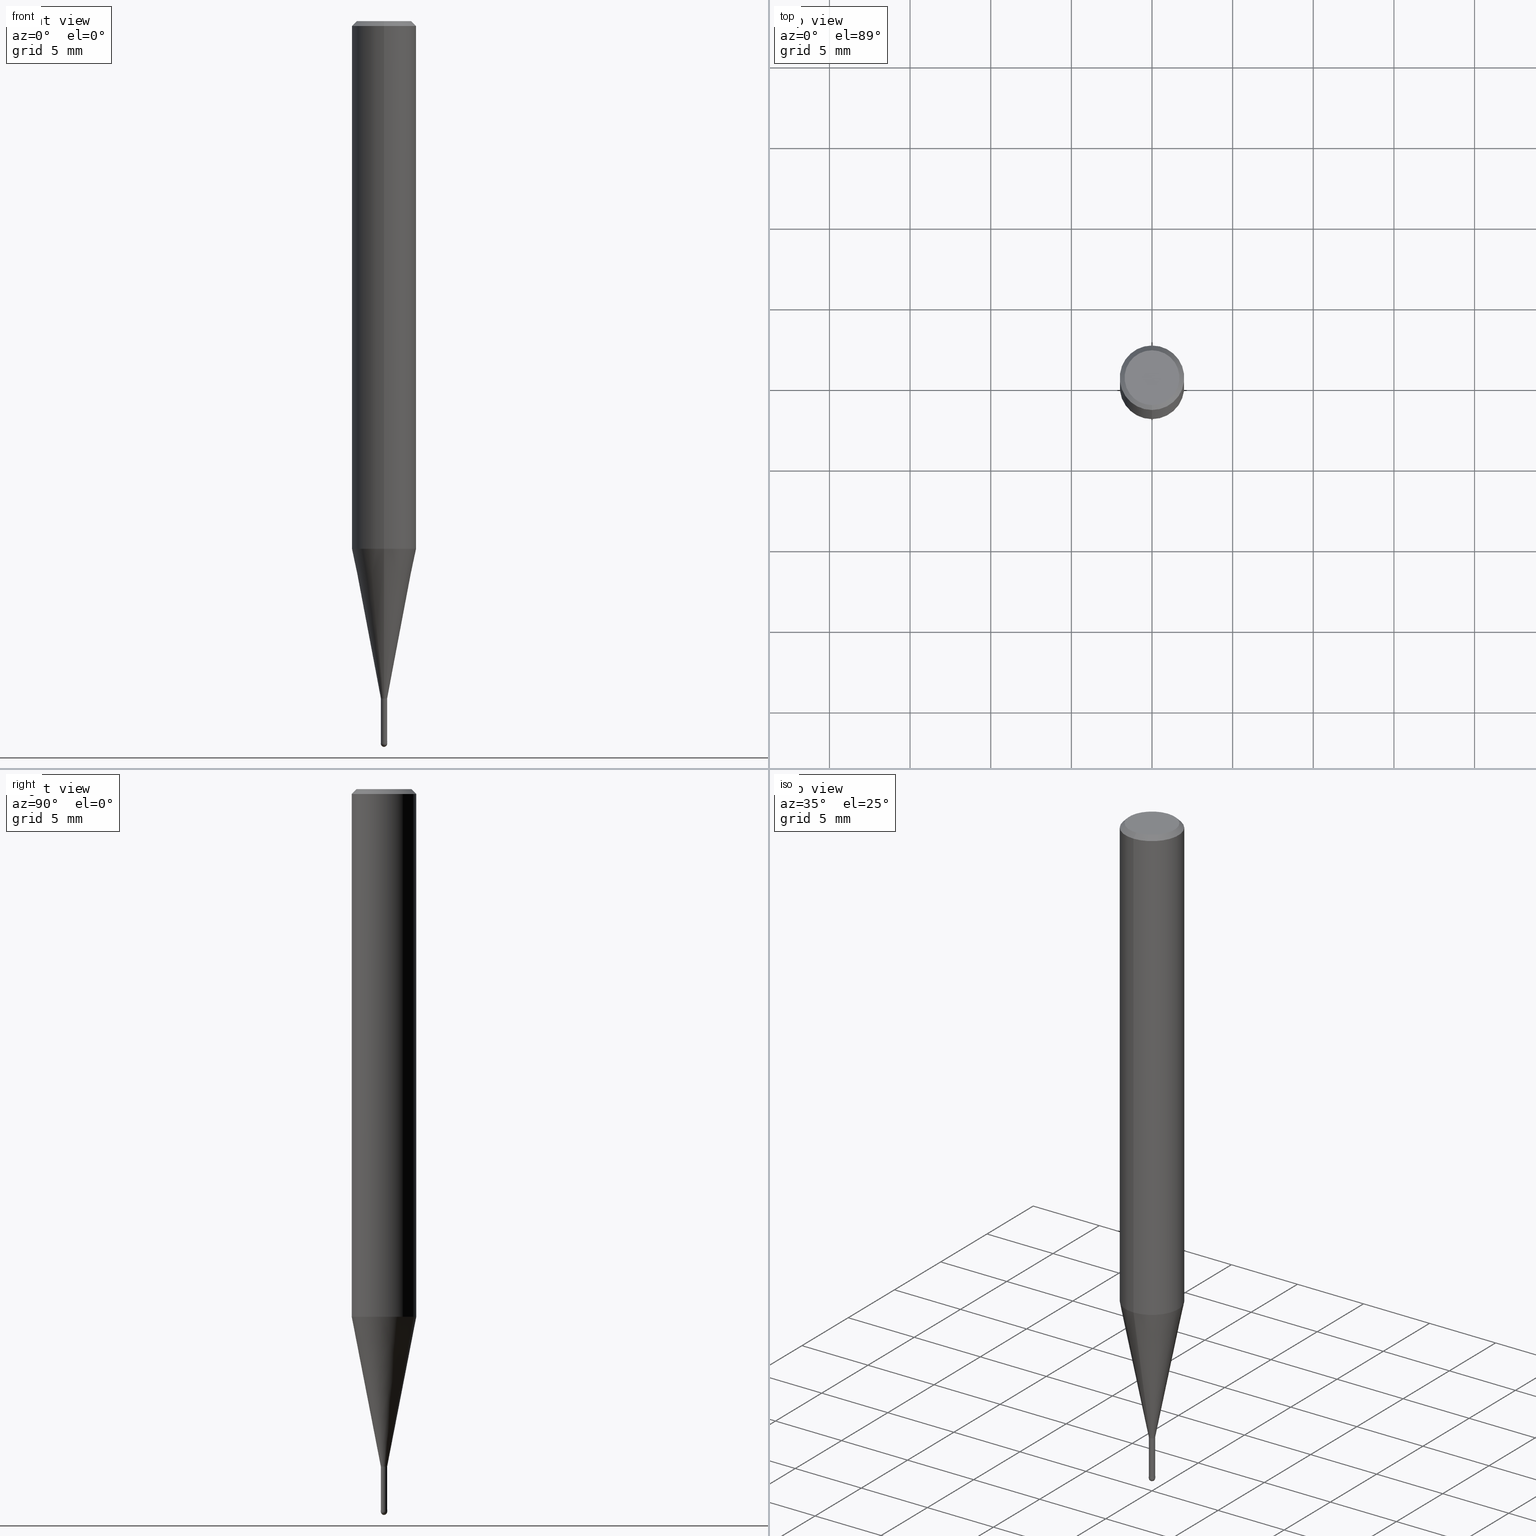
[diagram: canonical four-view strip — front | top / right | iso, engineering-drawing reading convention]
A machine part, canonical four-view strip (front | top / right | iso — engineering-drawing reading convention). The complete STEP part file that produces these views, byte-faithful:
ISO-10303-21;
HEADER;
FILE_DESCRIPTION(('no description'),'unknown implementation level');
FILE_NAME('CSELB2004-030-Huellk.stp','  ',('CIMSOURCE GmbH'),('CADClick - KiM GmbH - www.kimweb.de'),'unknown preprocess','ACIS','unknown authorization');
FILE_SCHEMA(('automotive_design'));
ENDSEC;
DATA;
#1=MECHANICAL_DESIGN_GEOMETRIC_PRESENTATION_REPRESENTATION(' ',(#14,#15,#16,#17,#18,#19,#20,#21,#22,#23,#24,#25,#26,#27,#28,#29,#30,#31,#32,#33,#34,#35,#36,#37,#38,#39,#40,#41,#42,#43,#44,#45,#46,#47,#48,#49,#50,#51,#52,#53,#54,#55,#56,#57,#58,#59,#60,#61,#62,#63,#64,#65,#66,#67,#68,#69,#70,#71,#72,#73,#74),#10);
#2=PRODUCT_DEFINITION_CONTEXT('',#75,'design');
#3=APPLICATION_PROTOCOL_DEFINITION('INTERNATIONAL STANDARD','automotive_design',1994,#75);
#4=PRODUCT_CATEGORY_RELATIONSHIP('NONE','NONE',#76,#77);
#5=SHAPE_DEFINITION_REPRESENTATION(#78,#79);
#6=PRODUCT_DEFINITION_CONTEXT('',#80,'design');
#7=APPLICATION_PROTOCOL_DEFINITION('INTERNATIONAL STANDARD','automotive_design',1994,#80);
#8=PRODUCT_CATEGORY_RELATIONSHIP('NONE','NONE',#81,#82);
#9=SHAPE_DEFINITION_REPRESENTATION(#83,#84);
#10= (GEOMETRIC_REPRESENTATION_CONTEXT(3)GLOBAL_UNCERTAINTY_ASSIGNED_CONTEXT((#87))GLOBAL_UNIT_ASSIGNED_CONTEXT((#89,#90,#91))REPRESENTATION_CONTEXT('NONE','WORKSPACE'));
#14=STYLED_ITEM('',(#93),#94);
#15=STYLED_ITEM('',(#95),#96);
#16=STYLED_ITEM('',(#97),#98);
#17=STYLED_ITEM('',(#99),#100);
#18=STYLED_ITEM('',(#101),#102);
#19=STYLED_ITEM('',(#103),#104);
#20=STYLED_ITEM('',(#105),#106);
#21=STYLED_ITEM('',(#107),#108);
#22=STYLED_ITEM('',(#109),#110);
#23=STYLED_ITEM('',(#111),#112);
#24=STYLED_ITEM('',(#113),#114);
#25=STYLED_ITEM('',(#115),#116);
#26=STYLED_ITEM('',(#117),#118);
#27=STYLED_ITEM('',(#119),#120);
#28=STYLED_ITEM('',(#121),#122);
#29=STYLED_ITEM('',(#123),#124);
#30=STYLED_ITEM('',(#125),#126);
#31=STYLED_ITEM('',(#127),#128);
#32=STYLED_ITEM('',(#129),#130);
#33=STYLED_ITEM('',(#131),#132);
#34=STYLED_ITEM('',(#133),#134);
#35=STYLED_ITEM('',(#135),#136);
#36=STYLED_ITEM('',(#137),#138);
#37=STYLED_ITEM('',(#139),#140);
#38=STYLED_ITEM('',(#141),#142);
#39=STYLED_ITEM('',(#143),#144);
#40=STYLED_ITEM('',(#145),#146);
#41=STYLED_ITEM('',(#147),#148);
#42=STYLED_ITEM('',(#149),#150);
#43=STYLED_ITEM('',(#151),#152);
#44=STYLED_ITEM('',(#153),#154);
#45=STYLED_ITEM('',(#155),#156);
#46=STYLED_ITEM('',(#157),#158);
#47=STYLED_ITEM('',(#159),#160);
#48=STYLED_ITEM('',(#161),#162);
#49=STYLED_ITEM('',(#163),#164);
#50=STYLED_ITEM('',(#165),#166);
#51=STYLED_ITEM('',(#167),#168);
#52=STYLED_ITEM('',(#169),#170);
#53=STYLED_ITEM('',(#171),#172);
#54=STYLED_ITEM('',(#173),#174);
#55=STYLED_ITEM('',(#175),#176);
#56=STYLED_ITEM('',(#177),#178);
#57=STYLED_ITEM('',(#179),#180);
#58=STYLED_ITEM('',(#181),#182);
#59=STYLED_ITEM('',(#183),#184);
#60=STYLED_ITEM('',(#185),#186);
#61=STYLED_ITEM('',(#187),#188);
#62=STYLED_ITEM('',(#189),#190);
#63=STYLED_ITEM('',(#191),#192);
#64=STYLED_ITEM('',(#193),#194);
#65=STYLED_ITEM('',(#195),#196);
#66=STYLED_ITEM('',(#197),#198);
#67=STYLED_ITEM('',(#199),#200);
#68=STYLED_ITEM('',(#201),#202);
#69=STYLED_ITEM('',(#203),#204);
#70=STYLED_ITEM('',(#205),#206);
#71=STYLED_ITEM('',(#207),#208);
#72=STYLED_ITEM('',(#209),#210);
#73=STYLED_ITEM('',(#211),#212);
#74=STYLED_ITEM('',(#213),#214);
#75=APPLICATION_CONTEXT(' ');
#76=PRODUCT_CATEGORY('part','NONE');
#77=PRODUCT_RELATED_PRODUCT_CATEGORY('detail',' ',(#215));
#78=PRODUCT_DEFINITION_SHAPE('NONE','NONE',#216);
#79=ADVANCED_BREP_SHAPE_REPRESENTATION('1',(#116,#217),#10);
#80=APPLICATION_CONTEXT(' ');
#81=PRODUCT_CATEGORY('part','NONE');
#82=PRODUCT_RELATED_PRODUCT_CATEGORY('detail',' ',(#218));
#83=PRODUCT_DEFINITION_SHAPE('NONE','NONE',#219);
#84=ADVANCED_BREP_SHAPE_REPRESENTATION('2',(#186,#220),#10);
#87=UNCERTAINTY_MEASURE_WITH_UNIT(LENGTH_MEASURE(1.0E-006),#89,'','');
#89= (CONVERSION_BASED_UNIT('MILLIMETRE',#223)LENGTH_UNIT()NAMED_UNIT(#226));
#90= (NAMED_UNIT(#228)PLANE_ANGLE_UNIT()SI_UNIT($,.RADIAN.));
#91= (NAMED_UNIT(#228)SOLID_ANGLE_UNIT()SI_UNIT($,.STERADIAN.));
#93=PRESENTATION_STYLE_ASSIGNMENT((#234));
#94=ADVANCED_FACE('',(#235),#236,.T.);
#95=PRESENTATION_STYLE_ASSIGNMENT((#237));
#96=EDGE_CURVE('',#162,#118,#238,.T.);
#97=PRESENTATION_STYLE_ASSIGNMENT((#239));
#98=EDGE_CURVE('',#114,#118,#240,.T.);
#99=PRESENTATION_STYLE_ASSIGNMENT((#241));
#100=VERTEX_POINT('',#242);
#101=PRESENTATION_STYLE_ASSIGNMENT((#243));
#102=ADVANCED_FACE('',(#244),#245,.T.);
#103=PRESENTATION_STYLE_ASSIGNMENT((#246));
#104=VERTEX_POINT('',#247);
#105=PRESENTATION_STYLE_ASSIGNMENT((#248));
#106=VERTEX_POINT('',#249);
#107=PRESENTATION_STYLE_ASSIGNMENT((#250));
#108=EDGE_CURVE('',#196,#100,#251,.T.);
#109=PRESENTATION_STYLE_ASSIGNMENT((#252));
#110=ADVANCED_FACE('',(#253),#254,.T.);
#111=PRESENTATION_STYLE_ASSIGNMENT((#255));
#112=VERTEX_POINT('',#256);
#113=PRESENTATION_STYLE_ASSIGNMENT((#257));
#114=VERTEX_POINT('',#258);
#115=PRESENTATION_STYLE_ASSIGNMENT((#259));
#116=MANIFOLD_SOLID_BREP('1',#260);
#117=PRESENTATION_STYLE_ASSIGNMENT((#261));
#118=VERTEX_POINT('',#262);
#119=PRESENTATION_STYLE_ASSIGNMENT((#263));
#120=EDGE_CURVE('',#112,#142,#264,.T.);
#121=PRESENTATION_STYLE_ASSIGNMENT((#265));
#122=EDGE_CURVE('',#180,#194,#266,.T.);
#123=PRESENTATION_STYLE_ASSIGNMENT((#267));
#124=EDGE_CURVE('',#158,#106,#268,.T.);
#125=PRESENTATION_STYLE_ASSIGNMENT((#269));
#126=VERTEX_POINT('',#270);
#127=PRESENTATION_STYLE_ASSIGNMENT((#271));
#128=EDGE_CURVE('',#142,#158,#272,.T.);
#129=PRESENTATION_STYLE_ASSIGNMENT((#273));
#130=VERTEX_POINT('',#274);
#131=PRESENTATION_STYLE_ASSIGNMENT((#275));
#132=ADVANCED_FACE('',(#276),#277,.T.);
#133=PRESENTATION_STYLE_ASSIGNMENT((#278));
#134=EDGE_CURVE('',#164,#136,#279,.T.);
#135=PRESENTATION_STYLE_ASSIGNMENT((#280));
#136=VERTEX_POINT('',#281);
#137=PRESENTATION_STYLE_ASSIGNMENT((#282));
#138=EDGE_CURVE('',#180,#100,#283,.T.);
#139=PRESENTATION_STYLE_ASSIGNMENT((#284));
#140=ADVANCED_FACE('',(#285),#286,.T.);
#141=PRESENTATION_STYLE_ASSIGNMENT((#287));
#142=VERTEX_POINT('',#288);
#143=PRESENTATION_STYLE_ASSIGNMENT((#289));
#144=ADVANCED_FACE('',(#290),#291,.T.);
#145=PRESENTATION_STYLE_ASSIGNMENT((#292));
#146=ADVANCED_FACE('',(#293),#294,.T.);
#147=PRESENTATION_STYLE_ASSIGNMENT((#295));
#148=EDGE_CURVE('',#126,#162,#296,.T.);
#149=PRESENTATION_STYLE_ASSIGNMENT((#297));
#150=EDGE_CURVE('',#114,#126,#298,.T.);
#151=PRESENTATION_STYLE_ASSIGNMENT((#299));
#152=EDGE_CURVE('',#194,#196,#300,.T.);
#153=PRESENTATION_STYLE_ASSIGNMENT((#301));
#154=ADVANCED_FACE('',(#302),#303,.T.);
#155=PRESENTATION_STYLE_ASSIGNMENT((#304));
#156=EDGE_CURVE('',#130,#180,#305,.T.);
#157=PRESENTATION_STYLE_ASSIGNMENT((#306));
#158=VERTEX_POINT('',#307);
#159=PRESENTATION_STYLE_ASSIGNMENT((#308));
#160=EDGE_CURVE('',#100,#104,#309,.T.);
#161=PRESENTATION_STYLE_ASSIGNMENT((#310));
#162=VERTEX_POINT('',#311);
#163=PRESENTATION_STYLE_ASSIGNMENT((#312));
#164=VERTEX_POINT('',#313);
#165=PRESENTATION_STYLE_ASSIGNMENT((#314));
#166=ADVANCED_FACE('',(#315),#316,.T.);
#167=PRESENTATION_STYLE_ASSIGNMENT((#317));
#168=ADVANCED_FACE('',(#318),#319,.T.);
#169=PRESENTATION_STYLE_ASSIGNMENT((#320));
#170=EDGE_CURVE('',#162,#126,#321,.T.);
#171=PRESENTATION_STYLE_ASSIGNMENT((#322));
#172=EDGE_CURVE('',#114,#118,#323,.T.);
#173=PRESENTATION_STYLE_ASSIGNMENT((#324));
#174=EDGE_CURVE('',#118,#114,#325,.T.);
#175=PRESENTATION_STYLE_ASSIGNMENT((#326));
#176=ADVANCED_FACE('',(#327),#328,.T.);
#177=PRESENTATION_STYLE_ASSIGNMENT((#329));
#178=ADVANCED_FACE('',(#330),#331,.T.);
#179=PRESENTATION_STYLE_ASSIGNMENT((#332));
#180=VERTEX_POINT('',#333);
#181=PRESENTATION_STYLE_ASSIGNMENT((#334));
#182=EDGE_CURVE('',#136,#158,#335,.T.);
#183=PRESENTATION_STYLE_ASSIGNMENT((#336));
#184=ADVANCED_FACE('',(#337,#338),#339,.T.);
#185=PRESENTATION_STYLE_ASSIGNMENT((#340));
#186=MANIFOLD_SOLID_BREP('2',#341);
#187=PRESENTATION_STYLE_ASSIGNMENT((#342));
#188=ADVANCED_FACE('',(#343),#344,.T.);
#189=PRESENTATION_STYLE_ASSIGNMENT((#345));
#190=EDGE_CURVE('',#106,#112,#346,.T.);
#191=PRESENTATION_STYLE_ASSIGNMENT((#347));
#192=ADVANCED_FACE('',(#348),#349,.T.);
#193=PRESENTATION_STYLE_ASSIGNMENT((#350));
#194=VERTEX_POINT('',#351);
#195=PRESENTATION_STYLE_ASSIGNMENT((#352));
#196=VERTEX_POINT('',#353);
#197=PRESENTATION_STYLE_ASSIGNMENT((#354));
#198=EDGE_CURVE('',#142,#164,#355,.T.);
#199=PRESENTATION_STYLE_ASSIGNMENT((#356));
#200=EDGE_CURVE('',#136,#164,#357,.T.);
#201=PRESENTATION_STYLE_ASSIGNMENT((#358));
#202=EDGE_CURVE('',#100,#180,#359,.T.);
#203=PRESENTATION_STYLE_ASSIGNMENT((#360));
#204=EDGE_CURVE('',#196,#194,#361,.T.);
#205=PRESENTATION_STYLE_ASSIGNMENT((#362));
#206=EDGE_CURVE('',#112,#106,#363,.T.);
#207=PRESENTATION_STYLE_ASSIGNMENT((#364));
#208=EDGE_CURVE('',#130,#104,#365,.T.);
#209=PRESENTATION_STYLE_ASSIGNMENT((#366));
#210=EDGE_CURVE('',#158,#142,#367,.T.);
#211=PRESENTATION_STYLE_ASSIGNMENT((#368));
#212=ADVANCED_FACE('',(#369),#370,.T.);
#213=PRESENTATION_STYLE_ASSIGNMENT((#371));
#214=EDGE_CURVE('',#104,#130,#372,.T.);
#215=PRODUCT('1','1','PART-1-DESC',(#373));
#216=PRODUCT_DEFINITION('NONE','NONE',#374,#2);
#217=AXIS2_PLACEMENT_3D('',#375,#376,#377);
#218=PRODUCT('2','2','PART-2-DESC',(#378));
#219=PRODUCT_DEFINITION('NONE','NONE',#379,#6);
#220=AXIS2_PLACEMENT_3D('',#380,#381,#382);
#223=LENGTH_MEASURE_WITH_UNIT(LENGTH_MEASURE(1.0),#383);
#226=DIMENSIONAL_EXPONENTS(1.0,0.0,0.0,0.0,0.0,0.0,0.0);
#228=DIMENSIONAL_EXPONENTS(0.0,0.0,0.0,0.0,0.0,0.0,0.0);
#234=SURFACE_STYLE_USAGE(.BOTH.,#384);
#235=FACE_OUTER_BOUND('',#385,.T.);
#236=PLANE('',#386);
#237=CURVE_STYLE('',#387,POSITIVE_LENGTH_MEASURE(1.0E-006),#388);
#238=LINE('',#389,#390);
#239=CURVE_STYLE('',#391,POSITIVE_LENGTH_MEASURE(1.0E-006),#392);
#240=CIRCLE('',#393,0.2);
#241=POINT_STYLE(' ',#394,POSITIVE_LENGTH_MEASURE(1.0E-006),#395);
#242=CARTESIAN_POINT('',(2.38737008677672E-017,-0.19495,-42.0));
#243=SURFACE_STYLE_USAGE(.BOTH.,#396);
#244=FACE_OUTER_BOUND('',#397,.T.);
#245=PLANE('',#398);
#246=POINT_STYLE(' ',#399,POSITIVE_LENGTH_MEASURE(1.0E-006),#400);
#247=CARTESIAN_POINT('',(2.44915147732706E-016,-1.99995,-32.714));
#248=POINT_STYLE(' ',#401,POSITIVE_LENGTH_MEASURE(1.0E-006),#402);
#249=CARTESIAN_POINT('',(2.08183080149804E-016,-1.7,0.0));
#250=CURVE_STYLE('',#403,POSITIVE_LENGTH_MEASURE(1.0E-006),#404);
#251=LINE('',#405,#406);
#252=SURFACE_STYLE_USAGE(.BOTH.,#407);
#253=FACE_OUTER_BOUND('',#408,.T.);
#254=CONICAL_SURFACE('',#409,1.85,0.785398163397453);
#255=POINT_STYLE(' ',#410,POSITIVE_LENGTH_MEASURE(1.0E-006),#411);
#256=CARTESIAN_POINT('',(0.0,1.7,0.0));
#257=POINT_STYLE(' ',#412,POSITIVE_LENGTH_MEASURE(1.0E-006),#413);
#258=CARTESIAN_POINT('',(2.44921270764475E-017,-0.2,-44.8));
#259=SURFACE_STYLE_USAGE(.BOTH.,#414);
#260=CLOSED_SHELL('',(#146,#192,#178,#188,#184,#94,#110,#154,#212,#144,#102));
#261=POINT_STYLE(' ',#415,POSITIVE_LENGTH_MEASURE(1.0E-006),#416);
#262=CARTESIAN_POINT('',(0.0,0.2,-44.8));
#263=CURVE_STYLE('',#417,POSITIVE_LENGTH_MEASURE(1.0E-006),#418);
#264=LINE('',#419,#420);
#265=CURVE_STYLE('',#421,POSITIVE_LENGTH_MEASURE(1.0E-006),#422);
#266=LINE('',#423,#424);
#267=CURVE_STYLE('',#425,POSITIVE_LENGTH_MEASURE(1.0E-006),#426);
#268=LINE('',#427,#428);
#269=POINT_STYLE(' ',#429,POSITIVE_LENGTH_MEASURE(1.0E-006),#430);
#270=CARTESIAN_POINT('',(2.44798810129093E-017,-0.1999,-44.68));
#271=CURVE_STYLE('',#431,POSITIVE_LENGTH_MEASURE(1.0E-006),#432);
#272=CIRCLE('',#433,2.0);
#273=POINT_STYLE(' ',#434,POSITIVE_LENGTH_MEASURE(1.0E-006),#435);
#274=CARTESIAN_POINT('',(0.0,1.99995,-32.714));
#275=SURFACE_STYLE_USAGE(.BOTH.,#436);
#276=FACE_OUTER_BOUND('',#437,.T.);
#277=CONICAL_SURFACE('',#438,0.19995,0.000833333140432319);
#278=CURVE_STYLE('',#439,POSITIVE_LENGTH_MEASURE(1.0E-006),#440);
#279=CIRCLE('',#441,2.0);
#280=POINT_STYLE(' ',#442,POSITIVE_LENGTH_MEASURE(1.0E-006),#443);
#281=CARTESIAN_POINT('',(2.44921270764475E-016,-2.0,-32.714));
#282=CURVE_STYLE('',#444,POSITIVE_LENGTH_MEASURE(1.0E-006),#445);
#283=CIRCLE('',#446,0.19495);
#284=SURFACE_STYLE_USAGE(.BOTH.,#447);
#285=FACE_OUTER_BOUND('',#448,.T.);
#286=SPHERICAL_SURFACE('',#449,0.2);
#287=POINT_STYLE(' ',#450,POSITIVE_LENGTH_MEASURE(1.0E-006),#451);
#288=CARTESIAN_POINT('',(0.0,2.0,-0.299999999999997));
#289=SURFACE_STYLE_USAGE(.BOTH.,#452);
#290=FACE_OUTER_BOUND('',#453,.T.);
#291=CYLINDRICAL_SURFACE('',#454,0.19495);
#292=SURFACE_STYLE_USAGE(.BOTH.,#455);
#293=FACE_OUTER_BOUND('',#456,.T.);
#294=CYLINDRICAL_SURFACE('',#457,0.19495);
#295=CURVE_STYLE('',#458,POSITIVE_LENGTH_MEASURE(1.0E-006),#459);
#296=CIRCLE('',#460,0.1999);
#297=CURVE_STYLE('',#461,POSITIVE_LENGTH_MEASURE(1.0E-006),#462);
#298=LINE('',#463,#464);
#299=CURVE_STYLE('',#465,POSITIVE_LENGTH_MEASURE(1.0E-006),#466);
#300=CIRCLE('',#467,0.19495);
#301=SURFACE_STYLE_USAGE(.BOTH.,#468);
#302=FACE_OUTER_BOUND('',#469,.T.);
#303=CYLINDRICAL_SURFACE('',#470,2.0);
#304=CURVE_STYLE('',#471,POSITIVE_LENGTH_MEASURE(1.0E-006),#472);
#305=LINE('',#473,#474);
#306=POINT_STYLE(' ',#475,POSITIVE_LENGTH_MEASURE(1.0E-006),#476);
#307=CARTESIAN_POINT('',(2.44921270764475E-016,-2.0,-0.299999999999997));
#308=CURVE_STYLE('',#477,POSITIVE_LENGTH_MEASURE(1.0E-006),#478);
#309=LINE('',#479,#480);
#310=POINT_STYLE(' ',#481,POSITIVE_LENGTH_MEASURE(1.0E-006),#482);
#311=CARTESIAN_POINT('',(0.0,0.1999,-44.68));
#312=POINT_STYLE(' ',#483,POSITIVE_LENGTH_MEASURE(1.0E-006),#484);
#313=CARTESIAN_POINT('',(0.0,2.0,-32.714));
#314=SURFACE_STYLE_USAGE(.BOTH.,#485);
#315=FACE_OUTER_BOUND('',#486,.T.);
#316=CONICAL_SURFACE('',#487,0.19995,0.000833333140432319);
#317=SURFACE_STYLE_USAGE(.BOTH.,#488);
#318=FACE_OUTER_BOUND('',#489,.T.);
#319=PLANE('',#490);
#320=CURVE_STYLE('',#491,POSITIVE_LENGTH_MEASURE(1.0E-006),#492);
#321=CIRCLE('',#493,0.1999);
#322=CURVE_STYLE('',#494,POSITIVE_LENGTH_MEASURE(1.0E-006),#495);
#323=CIRCLE('',#496,0.2);
#324=CURVE_STYLE('',#497,POSITIVE_LENGTH_MEASURE(1.0E-006),#498);
#325=CIRCLE('',#499,0.2);
#326=SURFACE_STYLE_USAGE(.BOTH.,#500);
#327=FACE_OUTER_BOUND('',#501,.T.);
#328=SPHERICAL_SURFACE('',#502,0.2);
#329=SURFACE_STYLE_USAGE(.BOTH.,#503);
#330=FACE_OUTER_BOUND('',#504,.T.);
#331=CYLINDRICAL_SURFACE('',#505,2.0);
#332=POINT_STYLE(' ',#506,POSITIVE_LENGTH_MEASURE(1.0E-006),#507);
#333=CARTESIAN_POINT('',(0.0,0.19495,-42.0));
#334=CURVE_STYLE('',#508,POSITIVE_LENGTH_MEASURE(1.0E-006),#509);
#335=LINE('',#510,#511);
#336=SURFACE_STYLE_USAGE(.BOTH.,#512);
#337=FACE_OUTER_BOUND('',#513,.T.);
#338=FACE_BOUND('',#514,.T.);
#339=PLANE('',#515);
#340=SURFACE_STYLE_USAGE(.BOTH.,#516);
#341=CLOSED_SHELL('',(#140,#166,#168,#132,#176));
#342=SURFACE_STYLE_USAGE(.BOTH.,#517);
#343=FACE_OUTER_BOUND('',#518,.T.);
#344=CONICAL_SURFACE('',#519,1.85,0.785398163397453);
#345=CURVE_STYLE('',#520,POSITIVE_LENGTH_MEASURE(1.0E-006),#521);
#346=CIRCLE('',#522,1.7);
#347=SURFACE_STYLE_USAGE(.BOTH.,#523);
#348=FACE_OUTER_BOUND('',#524,.T.);
#349=CONICAL_SURFACE('',#525,1.09745,0.191984604054908);
#350=POINT_STYLE(' ',#526,POSITIVE_LENGTH_MEASURE(1.0E-006),#527);
#351=CARTESIAN_POINT('',(0.0,0.19495,-44.68));
#352=POINT_STYLE(' ',#528,POSITIVE_LENGTH_MEASURE(1.0E-006),#529);
#353=CARTESIAN_POINT('',(2.38737008677672E-017,-0.19495,-44.68));
#354=CURVE_STYLE('',#530,POSITIVE_LENGTH_MEASURE(1.0E-006),#531);
#355=LINE('',#532,#533);
#356=CURVE_STYLE('',#534,POSITIVE_LENGTH_MEASURE(1.0E-006),#535);
#357=CIRCLE('',#536,2.0);
#358=CURVE_STYLE('',#537,POSITIVE_LENGTH_MEASURE(1.0E-006),#538);
#359=CIRCLE('',#539,0.19495);
#360=CURVE_STYLE('',#540,POSITIVE_LENGTH_MEASURE(1.0E-006),#541);
#361=CIRCLE('',#542,0.19495);
#362=CURVE_STYLE('',#543,POSITIVE_LENGTH_MEASURE(1.0E-006),#544);
#363=CIRCLE('',#545,1.7);
#364=CURVE_STYLE('',#546,POSITIVE_LENGTH_MEASURE(1.0E-006),#547);
#365=CIRCLE('',#548,1.99995);
#366=CURVE_STYLE('',#549,POSITIVE_LENGTH_MEASURE(1.0E-006),#550);
#367=CIRCLE('',#551,2.0);
#368=SURFACE_STYLE_USAGE(.BOTH.,#552);
#369=FACE_OUTER_BOUND('',#553,.T.);
#370=CONICAL_SURFACE('',#554,1.09745,0.191984604054908);
#371=CURVE_STYLE('',#555,POSITIVE_LENGTH_MEASURE(1.0E-006),#556);
#372=CIRCLE('',#557,1.99995);
#373=PRODUCT_CONTEXT('',#75,'mechanical');
#374=PRODUCT_DEFINITION_FORMATION_WITH_SPECIFIED_SOURCE(' ','NONE',#215,.NOT_KNOWN.);
#375=CARTESIAN_POINT('',(0.0,0.0,0.0));
#376=DIRECTION('',(0.0,0.0,1.0));
#377=DIRECTION('',(1.0,0.0,0.0));
#378=PRODUCT_CONTEXT('',#80,'mechanical');
#379=PRODUCT_DEFINITION_FORMATION_WITH_SPECIFIED_SOURCE(' ','NONE',#218,.NOT_KNOWN.);
#380=CARTESIAN_POINT('',(0.0,0.0,0.0));
#381=DIRECTION('',(0.0,0.0,1.0));
#382=DIRECTION('',(1.0,0.0,0.0));
#383= (NAMED_UNIT(#226)LENGTH_UNIT()SI_UNIT(.MILLI.,.METRE.));
#384=SURFACE_SIDE_STYLE('',(#559));
#385=EDGE_LOOP('',(#560,#561));
#386=AXIS2_PLACEMENT_3D('',#562,#563,#564);
#387=DRAUGHTING_PRE_DEFINED_CURVE_FONT('continuous');
#388=COLOUR_RGB('',0.800000011920929,0.800000011920929,0.800000011920929);
#389=CARTESIAN_POINT('',(-2.44860040446784E-017,0.19995,-44.74));
#390=VECTOR('',#565,1.0);
#391=DRAUGHTING_PRE_DEFINED_CURVE_FONT('continuous');
#392=COLOUR_RGB('',0.800000011920929,0.800000011920929,0.800000011920929);
#393=AXIS2_PLACEMENT_3D('',#566,#567,#568);
#394=PRE_DEFINED_MARKER('');
#395=COLOUR_RGB('',0.498039215803146,0.498039215803146,0.498039215803146);
#396=SURFACE_SIDE_STYLE('',(#569));
#397=EDGE_LOOP('',(#570,#571));
#398=AXIS2_PLACEMENT_3D('',#572,#573,#574);
#399=PRE_DEFINED_MARKER('');
#400=COLOUR_RGB('',0.498039215803146,0.498039215803146,0.498039215803146);
#401=PRE_DEFINED_MARKER('');
#402=COLOUR_RGB('',0.498039215803146,0.498039215803146,0.498039215803146);
#403=DRAUGHTING_PRE_DEFINED_CURVE_FONT('continuous');
#404=COLOUR_RGB('',0.498039215803146,0.498039215803146,0.498039215803146);
#405=CARTESIAN_POINT('',(2.38737008677672E-017,-0.19495,-43.34));
#406=VECTOR('',#575,1.0);
#407=SURFACE_SIDE_STYLE('',(#576));
#408=EDGE_LOOP('',(#577,#578,#579,#580));
#409=AXIS2_PLACEMENT_3D('',#581,#582,#583);
#410=PRE_DEFINED_MARKER('');
#411=COLOUR_RGB('',0.498039215803146,0.498039215803146,0.498039215803146);
#412=PRE_DEFINED_MARKER('');
#413=COLOUR_RGB('',0.800000011920929,0.800000011920929,0.800000011920929);
#414=SURFACE_SIDE_STYLE('',(#584));
#415=PRE_DEFINED_MARKER('');
#416=COLOUR_RGB('',0.800000011920929,0.800000011920929,0.800000011920929);
#417=DRAUGHTING_PRE_DEFINED_CURVE_FONT('continuous');
#418=COLOUR_RGB('',0.498039215803146,0.498039215803146,0.498039215803146);
#419=CARTESIAN_POINT('',(-2.2655217545714E-016,1.85,-0.149999999999999));
#420=VECTOR('',#585,1.0);
#421=DRAUGHTING_PRE_DEFINED_CURVE_FONT('continuous');
#422=COLOUR_RGB('',0.498039215803146,0.498039215803146,0.498039215803146);
#423=CARTESIAN_POINT('',(-2.38737008677672E-017,0.19495,-43.34));
#424=VECTOR('',#586,1.0);
#425=DRAUGHTING_PRE_DEFINED_CURVE_FONT('continuous');
#426=COLOUR_RGB('',0.498039215803146,0.498039215803146,0.498039215803146);
#427=CARTESIAN_POINT('',(2.2655217545714E-016,-1.85,-0.149999999999999));
#428=VECTOR('',#587,1.0);
#429=PRE_DEFINED_MARKER('');
#430=COLOUR_RGB('',0.800000011920929,0.800000011920929,0.800000011920929);
#431=DRAUGHTING_PRE_DEFINED_CURVE_FONT('continuous');
#432=COLOUR_RGB('',0.498039215803146,0.498039215803146,0.498039215803146);
#433=AXIS2_PLACEMENT_3D('',#588,#589,#590);
#434=PRE_DEFINED_MARKER('');
#435=COLOUR_RGB('',0.498039215803146,0.498039215803146,0.498039215803146);
#436=SURFACE_SIDE_STYLE('',(#591));
#437=EDGE_LOOP('',(#592,#593,#594,#595));
#438=AXIS2_PLACEMENT_3D('',#596,#597,#598);
#439=DRAUGHTING_PRE_DEFINED_CURVE_FONT('continuous');
#440=COLOUR_RGB('',0.498039215803146,0.498039215803146,0.498039215803146);
#441=AXIS2_PLACEMENT_3D('',#599,#600,#601);
#442=PRE_DEFINED_MARKER('');
#443=COLOUR_RGB('',0.498039215803146,0.498039215803146,0.498039215803146);
#444=DRAUGHTING_PRE_DEFINED_CURVE_FONT('continuous');
#445=COLOUR_RGB('',0.498039215803146,0.498039215803146,0.498039215803146);
#446=AXIS2_PLACEMENT_3D('',#602,#603,#604);
#447=SURFACE_SIDE_STYLE('',(#605));
#448=EDGE_LOOP('',(#606,#607));
#449=AXIS2_PLACEMENT_3D('',#608,#609,#610);
#450=PRE_DEFINED_MARKER('');
#451=COLOUR_RGB('',0.498039215803146,0.498039215803146,0.498039215803146);
#452=SURFACE_SIDE_STYLE('',(#611));
#453=EDGE_LOOP('',(#612,#613,#614,#615));
#454=AXIS2_PLACEMENT_3D('',#616,#617,#618);
#455=SURFACE_SIDE_STYLE('',(#619));
#456=EDGE_LOOP('',(#620,#621,#622,#623));
#457=AXIS2_PLACEMENT_3D('',#624,#625,#626);
#458=DRAUGHTING_PRE_DEFINED_CURVE_FONT('continuous');
#459=COLOUR_RGB('',0.800000011920929,0.800000011920929,0.800000011920929);
#460=AXIS2_PLACEMENT_3D('',#627,#628,#629);
#461=DRAUGHTING_PRE_DEFINED_CURVE_FONT('continuous');
#462=COLOUR_RGB('',0.800000011920929,0.800000011920929,0.800000011920929);
#463=CARTESIAN_POINT('',(2.44860040446784E-017,-0.19995,-44.74));
#464=VECTOR('',#630,1.0);
#465=DRAUGHTING_PRE_DEFINED_CURVE_FONT('continuous');
#466=COLOUR_RGB('',0.498039215803146,0.498039215803146,0.498039215803146);
#467=AXIS2_PLACEMENT_3D('',#631,#632,#633);
#468=SURFACE_SIDE_STYLE('',(#634));
#469=EDGE_LOOP('',(#635,#636,#637,#638));
#470=AXIS2_PLACEMENT_3D('',#639,#640,#641);
#471=DRAUGHTING_PRE_DEFINED_CURVE_FONT('continuous');
#472=COLOUR_RGB('',0.498039215803146,0.498039215803146,0.498039215803146);
#473=CARTESIAN_POINT('',(-1.34394424300237E-016,1.09745,-37.357));
#474=VECTOR('',#642,1.0);
#475=PRE_DEFINED_MARKER('');
#476=COLOUR_RGB('',0.498039215803146,0.498039215803146,0.498039215803146);
#477=DRAUGHTING_PRE_DEFINED_CURVE_FONT('continuous');
#478=COLOUR_RGB('',0.498039215803146,0.498039215803146,0.498039215803146);
#479=CARTESIAN_POINT('',(1.34394424300237E-016,-1.09745,-37.357));
#480=VECTOR('',#643,1.0);
#481=PRE_DEFINED_MARKER('');
#482=COLOUR_RGB('',0.800000011920929,0.800000011920929,0.800000011920929);
#483=PRE_DEFINED_MARKER('');
#484=COLOUR_RGB('',0.498039215803146,0.498039215803146,0.498039215803146);
#485=SURFACE_SIDE_STYLE('',(#644));
#486=EDGE_LOOP('',(#645,#646,#647,#648));
#487=AXIS2_PLACEMENT_3D('',#649,#650,#651);
#488=SURFACE_SIDE_STYLE('',(#652));
#489=EDGE_LOOP('',(#653,#654));
#490=AXIS2_PLACEMENT_3D('',#655,#656,#657);
#491=DRAUGHTING_PRE_DEFINED_CURVE_FONT('continuous');
#492=COLOUR_RGB('',0.800000011920929,0.800000011920929,0.800000011920929);
#493=AXIS2_PLACEMENT_3D('',#658,#659,#660);
#494=DRAUGHTING_PRE_DEFINED_CURVE_FONT('continuous');
#495=COLOUR_RGB('',0.800000011920929,0.800000011920929,0.800000011920929);
#496=AXIS2_PLACEMENT_3D('',#661,#662,#663);
#497=DRAUGHTING_PRE_DEFINED_CURVE_FONT('continuous');
#498=COLOUR_RGB('',0.800000011920929,0.800000011920929,0.800000011920929);
#499=AXIS2_PLACEMENT_3D('',#664,#665,#666);
#500=SURFACE_SIDE_STYLE('',(#667));
#501=EDGE_LOOP('',(#668,#669));
#502=AXIS2_PLACEMENT_3D('',#670,#671,#672);
#503=SURFACE_SIDE_STYLE('',(#673));
#504=EDGE_LOOP('',(#674,#675,#676,#677));
#505=AXIS2_PLACEMENT_3D('',#678,#679,#680);
#506=PRE_DEFINED_MARKER('');
#507=COLOUR_RGB('',0.498039215803146,0.498039215803146,0.498039215803146);
#508=DRAUGHTING_PRE_DEFINED_CURVE_FONT('continuous');
#509=COLOUR_RGB('',0.498039215803146,0.498039215803146,0.498039215803146);
#510=CARTESIAN_POINT('',(2.44921270764475E-016,-2.0,-16.507));
#511=VECTOR('',#681,1.0);
#512=SURFACE_SIDE_STYLE('',(#682));
#513=EDGE_LOOP('',(#683,#684));
#514=EDGE_LOOP('',(#685,#686));
#515=AXIS2_PLACEMENT_3D('',#687,#688,#689);
#516=SURFACE_SIDE_STYLE('',(#690));
#517=SURFACE_SIDE_STYLE('',(#691));
#518=EDGE_LOOP('',(#692,#693,#694,#695));
#519=AXIS2_PLACEMENT_3D('',#696,#697,#698);
#520=DRAUGHTING_PRE_DEFINED_CURVE_FONT('continuous');
#521=COLOUR_RGB('',0.498039215803146,0.498039215803146,0.498039215803146);
#522=AXIS2_PLACEMENT_3D('',#699,#700,#701);
#523=SURFACE_SIDE_STYLE('',(#702));
#524=EDGE_LOOP('',(#703,#704,#705,#706));
#525=AXIS2_PLACEMENT_3D('',#707,#708,#709);
#526=PRE_DEFINED_MARKER('');
#527=COLOUR_RGB('',0.498039215803146,0.498039215803146,0.498039215803146);
#528=PRE_DEFINED_MARKER('');
#529=COLOUR_RGB('',0.498039215803146,0.498039215803146,0.498039215803146);
#530=DRAUGHTING_PRE_DEFINED_CURVE_FONT('continuous');
#531=COLOUR_RGB('',0.498039215803146,0.498039215803146,0.498039215803146);
#532=CARTESIAN_POINT('',(-2.44921270764475E-016,2.0,-16.507));
#533=VECTOR('',#710,1.0);
#534=DRAUGHTING_PRE_DEFINED_CURVE_FONT('continuous');
#535=COLOUR_RGB('',0.498039215803146,0.498039215803146,0.498039215803146);
#536=AXIS2_PLACEMENT_3D('',#711,#712,#713);
#537=DRAUGHTING_PRE_DEFINED_CURVE_FONT('continuous');
#538=COLOUR_RGB('',0.498039215803146,0.498039215803146,0.498039215803146);
#539=AXIS2_PLACEMENT_3D('',#714,#715,#716);
#540=DRAUGHTING_PRE_DEFINED_CURVE_FONT('continuous');
#541=COLOUR_RGB('',0.498039215803146,0.498039215803146,0.498039215803146);
#542=AXIS2_PLACEMENT_3D('',#717,#718,#719);
#543=DRAUGHTING_PRE_DEFINED_CURVE_FONT('continuous');
#544=COLOUR_RGB('',0.498039215803146,0.498039215803146,0.498039215803146);
#545=AXIS2_PLACEMENT_3D('',#720,#721,#722);
#546=DRAUGHTING_PRE_DEFINED_CURVE_FONT('continuous');
#547=COLOUR_RGB('',0.498039215803146,0.498039215803146,0.498039215803146);
#548=AXIS2_PLACEMENT_3D('',#723,#724,#725);
#549=DRAUGHTING_PRE_DEFINED_CURVE_FONT('continuous');
#550=COLOUR_RGB('',0.498039215803146,0.498039215803146,0.498039215803146);
#551=AXIS2_PLACEMENT_3D('',#726,#727,#728);
#552=SURFACE_SIDE_STYLE('',(#729));
#553=EDGE_LOOP('',(#730,#731,#732,#733));
#554=AXIS2_PLACEMENT_3D('',#734,#735,#736);
#555=DRAUGHTING_PRE_DEFINED_CURVE_FONT('continuous');
#556=COLOUR_RGB('',0.498039215803146,0.498039215803146,0.498039215803146);
#557=AXIS2_PLACEMENT_3D('',#737,#738,#739);
#559=SURFACE_STYLE_FILL_AREA(#740);
#560=ORIENTED_EDGE('',*,*,#206,.F.);
#561=ORIENTED_EDGE('',*,*,#190,.F.);
#562=CARTESIAN_POINT('',(0.0,0.85,0.0));
#563=DIRECTION('',(-0.0,0.0,1.0));
#564=DIRECTION('',(0.0,-1.0,0.0));
#565=DIRECTION('',(-1.02050494051022E-019,0.000833333043981772,-0.999999652777959));
#566=CARTESIAN_POINT('',(0.0,0.0,-44.8));
#567=DIRECTION('',(0.0,0.0,-1.0));
#568=DIRECTION('',(0.0,1.0,0.0));
#569=SURFACE_STYLE_FILL_AREA(#741);
#570=ORIENTED_EDGE('',*,*,#152,.T.);
#571=ORIENTED_EDGE('',*,*,#204,.T.);
#572=CARTESIAN_POINT('',(0.0,0.097475,-44.68));
#573=DIRECTION('',(0.0,0.0,-1.0));
#574=DIRECTION('',(0.0,1.0,0.0));
#575=DIRECTION('',(-0.0,-0.0,1.0));
#576=SURFACE_STYLE_FILL_AREA(#742);
#577=ORIENTED_EDGE('',*,*,#120,.T.);
#578=ORIENTED_EDGE('',*,*,#210,.F.);
#579=ORIENTED_EDGE('',*,*,#124,.T.);
#580=ORIENTED_EDGE('',*,*,#190,.T.);
#581=CARTESIAN_POINT('',(0.0,0.0,-0.149999999999999));
#582=DIRECTION('',(0.0,-0.0,-1.0));
#583=DIRECTION('',(0.0,1.0,0.0));
#584=SURFACE_STYLE_FILL_AREA(#743);
#585=DIRECTION('',(-8.6592745707194E-017,0.707106781186551,-0.707106781186544));
#586=DIRECTION('',(0.0,0.0,-1.0));
#587=DIRECTION('',(-8.6592745707194E-017,0.707106781186551,0.707106781186544));
#588=CARTESIAN_POINT('',(0.0,0.0,-0.299999999999997));
#589=DIRECTION('',(0.0,0.0,-1.0));
#590=DIRECTION('',(0.0,1.0,0.0));
#591=SURFACE_STYLE_FILL_AREA(#744);
#592=ORIENTED_EDGE('',*,*,#96,.T.);
#593=ORIENTED_EDGE('',*,*,#98,.F.);
#594=ORIENTED_EDGE('',*,*,#150,.T.);
#595=ORIENTED_EDGE('',*,*,#148,.T.);
#596=CARTESIAN_POINT('',(0.0,0.0,-44.74));
#597=DIRECTION('',(0.0,-0.0,-1.0));
#598=DIRECTION('',(0.0,1.0,0.0));
#599=CARTESIAN_POINT('',(0.0,0.0,-32.714));
#600=DIRECTION('',(0.0,0.0,-1.0));
#601=DIRECTION('',(0.0,1.0,0.0));
#602=CARTESIAN_POINT('',(0.0,0.0,-42.0));
#603=DIRECTION('',(0.0,0.0,-1.0));
#604=DIRECTION('',(0.0,1.0,0.0));
#605=SURFACE_STYLE_FILL_AREA(#745);
#606=ORIENTED_EDGE('',*,*,#172,.F.);
#607=ORIENTED_EDGE('',*,*,#98,.T.);
#608=CARTESIAN_POINT('',(0.0,0.0,-44.8));
#609=DIRECTION('',(0.0,1.0,0.0));
#610=DIRECTION('',(0.0,0.0,-1.0));
#611=SURFACE_STYLE_FILL_AREA(#746);
#612=ORIENTED_EDGE('',*,*,#122,.T.);
#613=ORIENTED_EDGE('',*,*,#204,.F.);
#614=ORIENTED_EDGE('',*,*,#108,.T.);
#615=ORIENTED_EDGE('',*,*,#202,.T.);
#616=CARTESIAN_POINT('',(0.0,0.0,-43.34));
#617=DIRECTION('',(-0.0,-0.0,1.0));
#618=DIRECTION('',(0.0,1.0,0.0));
#619=SURFACE_STYLE_FILL_AREA(#747);
#620=ORIENTED_EDGE('',*,*,#122,.F.);
#621=ORIENTED_EDGE('',*,*,#138,.T.);
#622=ORIENTED_EDGE('',*,*,#108,.F.);
#623=ORIENTED_EDGE('',*,*,#152,.F.);
#624=CARTESIAN_POINT('',(0.0,0.0,-43.34));
#625=DIRECTION('',(-0.0,-0.0,1.0));
#626=DIRECTION('',(0.0,1.0,0.0));
#627=CARTESIAN_POINT('',(0.0,0.0,-44.68));
#628=DIRECTION('',(0.0,0.0,-1.0));
#629=DIRECTION('',(0.0,1.0,0.0));
#630=DIRECTION('',(-1.02050494051022E-019,0.000833333043981772,0.999999652777959));
#631=CARTESIAN_POINT('',(0.0,0.0,-44.68));
#632=DIRECTION('',(0.0,0.0,-1.0));
#633=DIRECTION('',(0.0,1.0,0.0));
#634=SURFACE_STYLE_FILL_AREA(#748);
#635=ORIENTED_EDGE('',*,*,#198,.T.);
#636=ORIENTED_EDGE('',*,*,#200,.F.);
#637=ORIENTED_EDGE('',*,*,#182,.T.);
#638=ORIENTED_EDGE('',*,*,#210,.T.);
#639=CARTESIAN_POINT('',(0.0,0.0,-16.507));
#640=DIRECTION('',(-0.0,-0.0,1.0));
#641=DIRECTION('',(0.0,1.0,0.0));
#642=DIRECTION('',(2.33663968307108E-017,-0.190807411359389,-0.981627491348082));
#643=DIRECTION('',(2.33663968307108E-017,-0.190807411359389,0.981627491348082));
#644=SURFACE_STYLE_FILL_AREA(#749);
#645=ORIENTED_EDGE('',*,*,#96,.F.);
#646=ORIENTED_EDGE('',*,*,#170,.T.);
#647=ORIENTED_EDGE('',*,*,#150,.F.);
#648=ORIENTED_EDGE('',*,*,#174,.F.);
#649=CARTESIAN_POINT('',(0.0,0.0,-44.74));
#650=DIRECTION('',(0.0,-0.0,-1.0));
#651=DIRECTION('',(0.0,1.0,0.0));
#652=SURFACE_STYLE_FILL_AREA(#750);
#653=ORIENTED_EDGE('',*,*,#170,.F.);
#654=ORIENTED_EDGE('',*,*,#148,.F.);
#655=CARTESIAN_POINT('',(0.0,0.09995,-44.68));
#656=DIRECTION('',(-0.0,0.0,1.0));
#657=DIRECTION('',(0.0,-1.0,0.0));
#658=CARTESIAN_POINT('',(0.0,0.0,-44.68));
#659=DIRECTION('',(0.0,0.0,-1.0));
#660=DIRECTION('',(0.0,1.0,0.0));
#661=CARTESIAN_POINT('',(0.0,0.0,-44.8));
#662=DIRECTION('',(1.0,0.0,1.22460635382236E-016));
#663=DIRECTION('',(-1.22460635382236E-016,0.0,1.0));
#664=CARTESIAN_POINT('',(0.0,0.0,-44.8));
#665=DIRECTION('',(0.0,0.0,-1.0));
#666=DIRECTION('',(0.0,1.0,0.0));
#667=SURFACE_STYLE_FILL_AREA(#751);
#668=ORIENTED_EDGE('',*,*,#172,.T.);
#669=ORIENTED_EDGE('',*,*,#174,.T.);
#670=CARTESIAN_POINT('',(0.0,0.0,-44.8));
#671=DIRECTION('',(0.0,1.0,0.0));
#672=DIRECTION('',(0.0,0.0,-1.0));
#673=SURFACE_STYLE_FILL_AREA(#752);
#674=ORIENTED_EDGE('',*,*,#198,.F.);
#675=ORIENTED_EDGE('',*,*,#128,.T.);
#676=ORIENTED_EDGE('',*,*,#182,.F.);
#677=ORIENTED_EDGE('',*,*,#134,.F.);
#678=CARTESIAN_POINT('',(0.0,0.0,-16.507));
#679=DIRECTION('',(-0.0,-0.0,1.0));
#680=DIRECTION('',(0.0,1.0,0.0));
#681=DIRECTION('',(-0.0,-0.0,1.0));
#682=SURFACE_STYLE_FILL_AREA(#753);
#683=ORIENTED_EDGE('',*,*,#134,.T.);
#684=ORIENTED_EDGE('',*,*,#200,.T.);
#685=ORIENTED_EDGE('',*,*,#208,.F.);
#686=ORIENTED_EDGE('',*,*,#214,.F.);
#687=CARTESIAN_POINT('',(0.0,1.0,-32.714));
#688=DIRECTION('',(0.0,0.0,-1.0));
#689=DIRECTION('',(0.0,1.0,0.0));
#690=SURFACE_STYLE_FILL_AREA(#754);
#691=SURFACE_STYLE_FILL_AREA(#755);
#692=ORIENTED_EDGE('',*,*,#120,.F.);
#693=ORIENTED_EDGE('',*,*,#206,.T.);
#694=ORIENTED_EDGE('',*,*,#124,.F.);
#695=ORIENTED_EDGE('',*,*,#128,.F.);
#696=CARTESIAN_POINT('',(0.0,0.0,-0.149999999999999));
#697=DIRECTION('',(0.0,-0.0,-1.0));
#698=DIRECTION('',(0.0,1.0,0.0));
#699=CARTESIAN_POINT('',(0.0,0.0,0.0));
#700=DIRECTION('',(0.0,0.0,-1.0));
#701=DIRECTION('',(0.0,1.0,0.0));
#702=SURFACE_STYLE_FILL_AREA(#756);
#703=ORIENTED_EDGE('',*,*,#156,.F.);
#704=ORIENTED_EDGE('',*,*,#208,.T.);
#705=ORIENTED_EDGE('',*,*,#160,.F.);
#706=ORIENTED_EDGE('',*,*,#138,.F.);
#707=CARTESIAN_POINT('',(0.0,0.0,-37.357));
#708=DIRECTION('',(-0.0,-0.0,1.0));
#709=DIRECTION('',(0.0,1.0,0.0));
#710=DIRECTION('',(0.0,0.0,-1.0));
#711=CARTESIAN_POINT('',(0.0,0.0,-32.714));
#712=DIRECTION('',(0.0,0.0,-1.0));
#713=DIRECTION('',(0.0,1.0,0.0));
#714=CARTESIAN_POINT('',(0.0,0.0,-42.0));
#715=DIRECTION('',(0.0,0.0,-1.0));
#716=DIRECTION('',(0.0,1.0,0.0));
#717=CARTESIAN_POINT('',(0.0,0.0,-44.68));
#718=DIRECTION('',(0.0,0.0,-1.0));
#719=DIRECTION('',(0.0,1.0,0.0));
#720=CARTESIAN_POINT('',(0.0,0.0,0.0));
#721=DIRECTION('',(0.0,0.0,-1.0));
#722=DIRECTION('',(0.0,1.0,0.0));
#723=CARTESIAN_POINT('',(0.0,0.0,-32.714));
#724=DIRECTION('',(0.0,0.0,-1.0));
#725=DIRECTION('',(0.0,1.0,0.0));
#726=CARTESIAN_POINT('',(0.0,0.0,-0.299999999999997));
#727=DIRECTION('',(0.0,0.0,-1.0));
#728=DIRECTION('',(0.0,1.0,0.0));
#729=SURFACE_STYLE_FILL_AREA(#757);
#730=ORIENTED_EDGE('',*,*,#156,.T.);
#731=ORIENTED_EDGE('',*,*,#202,.F.);
#732=ORIENTED_EDGE('',*,*,#160,.T.);
#733=ORIENTED_EDGE('',*,*,#214,.T.);
#734=CARTESIAN_POINT('',(0.0,0.0,-37.357));
#735=DIRECTION('',(-0.0,-0.0,1.0));
#736=DIRECTION('',(0.0,1.0,0.0));
#737=CARTESIAN_POINT('',(0.0,0.0,-32.714));
#738=DIRECTION('',(0.0,0.0,-1.0));
#739=DIRECTION('',(0.0,1.0,0.0));
#740=FILL_AREA_STYLE('',(#758));
#741=FILL_AREA_STYLE('',(#759));
#742=FILL_AREA_STYLE('',(#760));
#743=FILL_AREA_STYLE('',(#761));
#744=FILL_AREA_STYLE('',(#762));
#745=FILL_AREA_STYLE('',(#763));
#746=FILL_AREA_STYLE('',(#764));
#747=FILL_AREA_STYLE('',(#765));
#748=FILL_AREA_STYLE('',(#766));
#749=FILL_AREA_STYLE('',(#767));
#750=FILL_AREA_STYLE('',(#768));
#751=FILL_AREA_STYLE('',(#769));
#752=FILL_AREA_STYLE('',(#770));
#753=FILL_AREA_STYLE('',(#771));
#754=FILL_AREA_STYLE('',(#772));
#755=FILL_AREA_STYLE('',(#773));
#756=FILL_AREA_STYLE('',(#774));
#757=FILL_AREA_STYLE('',(#775));
#758=FILL_AREA_STYLE_COLOUR('',#776);
#759=FILL_AREA_STYLE_COLOUR('',#777);
#760=FILL_AREA_STYLE_COLOUR('',#778);
#761=FILL_AREA_STYLE_COLOUR('',#779);
#762=FILL_AREA_STYLE_COLOUR('',#780);
#763=FILL_AREA_STYLE_COLOUR('',#781);
#764=FILL_AREA_STYLE_COLOUR('',#782);
#765=FILL_AREA_STYLE_COLOUR('',#783);
#766=FILL_AREA_STYLE_COLOUR('',#784);
#767=FILL_AREA_STYLE_COLOUR('',#785);
#768=FILL_AREA_STYLE_COLOUR('',#786);
#769=FILL_AREA_STYLE_COLOUR('',#787);
#770=FILL_AREA_STYLE_COLOUR('',#788);
#771=FILL_AREA_STYLE_COLOUR('',#789);
#772=FILL_AREA_STYLE_COLOUR('',#790);
#773=FILL_AREA_STYLE_COLOUR('',#791);
#774=FILL_AREA_STYLE_COLOUR('',#792);
#775=FILL_AREA_STYLE_COLOUR('',#793);
#776=COLOUR_RGB('',0.498039215803146,0.498039215803146,0.498039215803146);
#777=COLOUR_RGB('',0.498039215803146,0.498039215803146,0.498039215803146);
#778=COLOUR_RGB('',0.498039215803146,0.498039215803146,0.498039215803146);
#779=COLOUR_RGB('',0.498039215803146,0.498039215803146,0.498039215803146);
#780=COLOUR_RGB('',0.800000011920929,0.800000011920929,0.800000011920929);
#781=COLOUR_RGB('',0.800000011920929,0.800000011920929,0.800000011920929);
#782=COLOUR_RGB('',0.498039215803146,0.498039215803146,0.498039215803146);
#783=COLOUR_RGB('',0.498039215803146,0.498039215803146,0.498039215803146);
#784=COLOUR_RGB('',0.498039215803146,0.498039215803146,0.498039215803146);
#785=COLOUR_RGB('',0.800000011920929,0.800000011920929,0.800000011920929);
#786=COLOUR_RGB('',0.800000011920929,0.800000011920929,0.800000011920929);
#787=COLOUR_RGB('',0.800000011920929,0.800000011920929,0.800000011920929);
#788=COLOUR_RGB('',0.498039215803146,0.498039215803146,0.498039215803146);
#789=COLOUR_RGB('',0.498039215803146,0.498039215803146,0.498039215803146);
#790=COLOUR_RGB('',0.800000011920929,0.800000011920929,0.800000011920929);
#791=COLOUR_RGB('',0.498039215803146,0.498039215803146,0.498039215803146);
#792=COLOUR_RGB('',0.498039215803146,0.498039215803146,0.498039215803146);
#793=COLOUR_RGB('',0.498039215803146,0.498039215803146,0.498039215803146);
#794=AXIS2_PLACEMENT_3D('PCS',#795,#796,#797);
#795=CARTESIAN_POINT('',(0.0,0.0,0.0));
#796=DIRECTION('',(0.0,0.0,1.0));
#797=DIRECTION('',(1.0,0.0,0.0));
#798=AXIS2_PLACEMENT_3D('CIP',#799,#800,#801);
#799=CARTESIAN_POINT('',(0.0,0.0,-45.0));
#800=DIRECTION('',(0.0,0.0,1.0));
#801=DIRECTION('',(1.0,0.0,0.0));
#802=AXIS2_PLACEMENT_3D('CRP',#803,#804,#805);
#803=CARTESIAN_POINT('',(-0.2,0.0,-45.0));
#804=DIRECTION('',(0.0,0.0,1.0));
#805=DIRECTION('',(1.0,0.0,0.0));
#806=AXIS2_PLACEMENT_3D('MCS',#807,#808,#809);
#807=CARTESIAN_POINT('',(0.0,0.0,-32.714));
#808=DIRECTION('',(0.0,0.0,1.0));
#809=DIRECTION('',(1.0,0.0,0.0));
#810=CONSTRUCTIVE_GEOMETRY_REPRESENTATION_RELATIONSHIP('coordinate systems',$,#79,#811);
#811=CONSTRUCTIVE_GEOMETRY_REPRESENTATION('coordinate systems',(#794,#798,#802,#806),#10);
ENDSEC;
END-ISO-10303-21;
